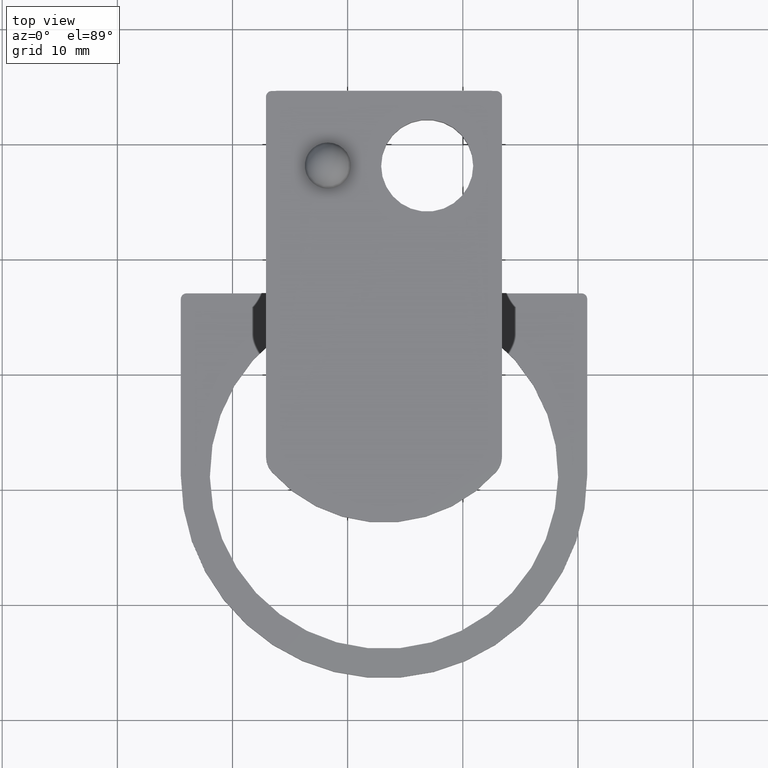
[diagram: clean part render]
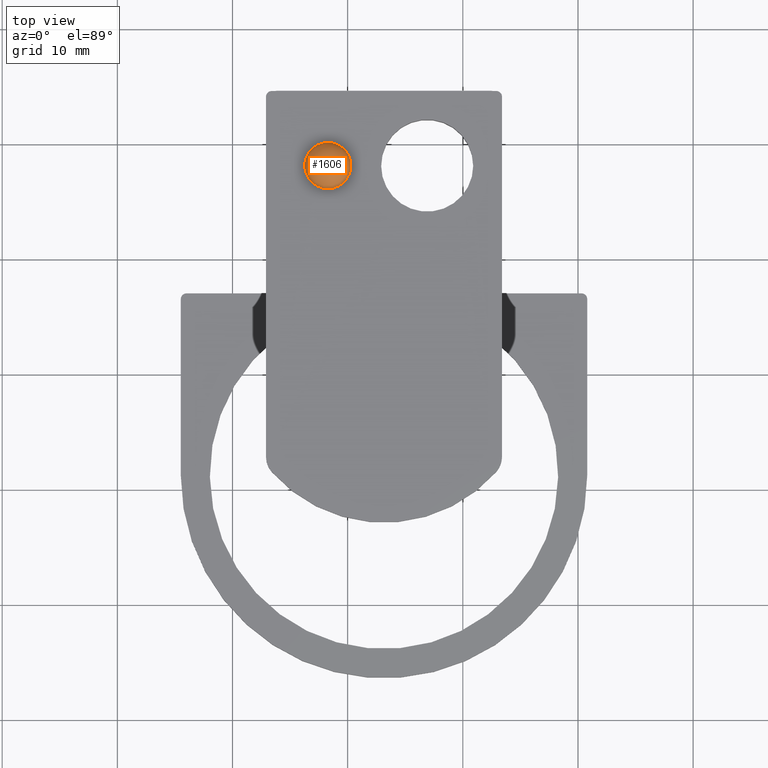
[diagram: same view with one face highlighted and labeled with its STEP entity id]
A machine part, top view. The second image highlights one B-rep face of the part: STEP entity #1606.
In plain terms, the highlighted spherical surface has radius 2.1286 mm.
Its self-contained STEP definition (entity closure, byte-faithful):
#1590=CARTESIAN_POINT('',(0.728571428571430,5.551115E-016,0.0));
#1591=DIRECTION('',(0.0,0.0,1.0));
#1592=DIRECTION('',(1.0,0.0,0.0));
#1593=AXIS2_PLACEMENT_3D('',#1590,#1591,#1592);
#1594=SPHERICAL_SURFACE('',#1593,2.128571428571428);
#1595=CARTESIAN_POINT('',(5.551115E-016,2.000000000000000,0.0));
#1596=VERTEX_POINT('',#1595);
#1597=CARTESIAN_POINT('',(1.069509E-015,3.554529E-016,0.0));
#1598=DIRECTION('',(1.0,0.0,0.0));
#1599=DIRECTION('',(0.0,1.0,0.0));
#1600=AXIS2_PLACEMENT_3D('',#1597,#1598,#1599);
#1601=CIRCLE('',#1600,2.0);
#1602=EDGE_CURVE('',#1596,#1596,#1601,.T.);
#1603=ORIENTED_EDGE('',*,*,#1602,.F.);
#1604=EDGE_LOOP('',(#1603));
#1605=FACE_OUTER_BOUND('',#1604,.T.);
#1606=ADVANCED_FACE('',(#1605),#1594,.T.);